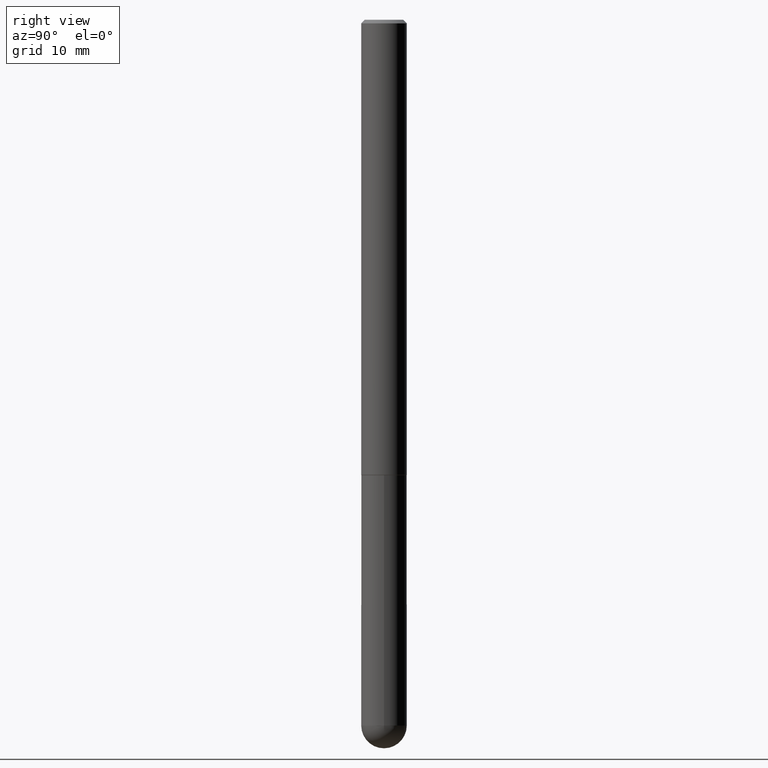
[diagram: clean part render]
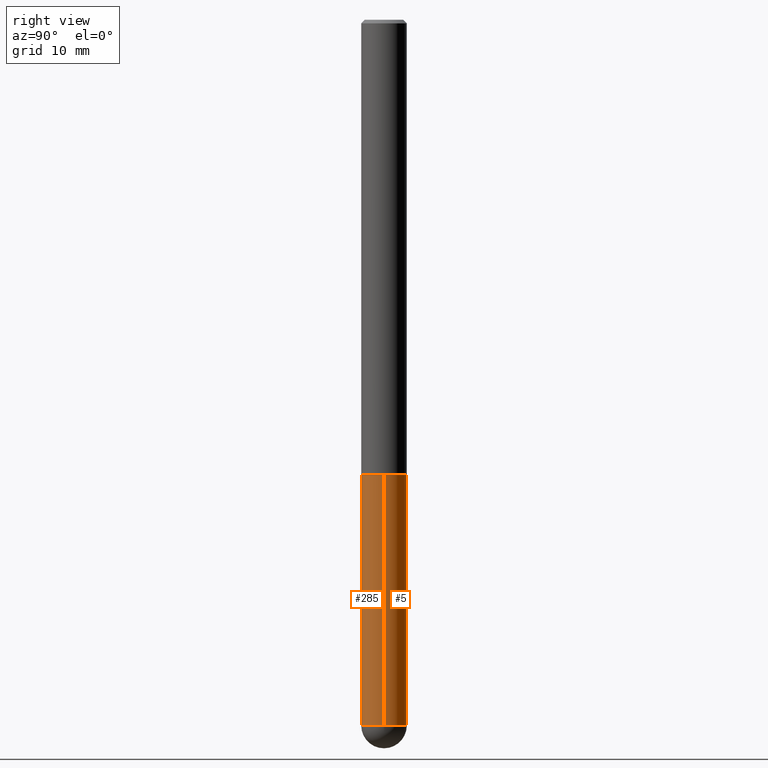
[diagram: same view with one multi-face feature highlighted, each face labeled with its STEP entity id]
A machine part, right view. The highlighted faces form ONE feature: a constant-radius fillet chain: 2 tangent blend faces with common blend radius 3.175 mm. The faces share edges in the B-rep.
Their STEP definitions:
[1] entity #285 (Cylinder):
#17 = LINE ( 'NONE', #332, #131 ) ;
#24 = DIRECTION ( 'NONE',  ( 1.000000000000000000, -6.982962677686262766E-15, 0.000000000000000000 ) ) ;
#26 = ORIENTED_EDGE ( 'NONE', *, *, #145, .F. ) ;
#29 = DIRECTION ( 'NONE',  ( -2.445468806185136877E-29, 3.491481338843145188E-15, 1.000000000000000000 ) ) ;
#43 = CARTESIAN_POINT ( 'NONE',  ( -0.1250000000000000000, -1.024091834786240415E-14, -3.875000000000000000 ) ) ;
#44 = CARTESIAN_POINT ( 'NONE',  ( 0.1250000000000000000, -1.200196710227331272E-14, -3.875000000000000000 ) ) ;
#47 = CIRCLE ( 'NONE', #208, 0.1250000000000000000 ) ;
#50 = EDGE_LOOP ( 'NONE', ( #122, #211, #401, #180, #26 ) ) ;
#51 = DIRECTION ( 'NONE',  ( -2.445468806185136877E-29, 3.491481338843145188E-15, 1.000000000000000000 ) ) ;
#55 = AXIS2_PLACEMENT_3D ( 'NONE', #291, #171, #292 ) ;
#62 = LINE ( 'NONE', #309, #85 ) ;
#69 = CARTESIAN_POINT ( 'NONE',  ( 9.476191623967404313E-29, -1.352949018801718908E-14, -3.875000000000000000 ) ) ;
#80 = CARTESIAN_POINT ( 'NONE',  ( -8.881784197000325412E-16, -0.1250000000000138500, -3.874999999999999556 ) ) ;
#84 = EDGE_CURVE ( 'NONE', #306, #153, #343, .T. ) ;
#85 = VECTOR ( 'NONE', #29, 39.37007874015748143 ) ;
#98 = CARTESIAN_POINT ( 'NONE',  ( 6.113672015462842613E-29, -8.728703347107864943E-15, -2.500000000000000000 ) ) ;
#113 = FACE_OUTER_BOUND ( 'NONE', #50, .T. ) ;
#122 = ORIENTED_EDGE ( 'NONE', *, *, #367, .F. ) ;
#131 = VECTOR ( 'NONE', #51, 39.37007874015748143 ) ;
#145 = EDGE_CURVE ( 'NONE', #304, #307, #355, .T. ) ;
#147 = EDGE_CURVE ( 'NONE', #279, #307, #62, .T. ) ;
#153 = VERTEX_POINT ( 'NONE', #80 ) ;
#161 = AXIS2_PLACEMENT_3D ( 'NONE', #69, #314, #221 ) ;
#165 = CYLINDRICAL_SURFACE ( 'NONE', #55, 0.1250000000000000000 ) ;
#168 = CARTESIAN_POINT ( 'NONE',  ( 0.1250000000000000000, -9.601573681818648281E-15, -2.500000000000000000 ) ) ;
#171 = DIRECTION ( 'NONE',  ( -2.445468806185136597E-29, 3.491481338843145583E-15, 1.000000000000000000 ) ) ;
#180 = ORIENTED_EDGE ( 'NONE', *, *, #147, .T. ) ;
#208 = AXIS2_PLACEMENT_3D ( 'NONE', #338, #268, #24 ) ;
#211 = ORIENTED_EDGE ( 'NONE', *, *, #84, .T. ) ;
#219 = DIRECTION ( 'NONE',  ( -2.445468806185136597E-29, 3.491481338843145583E-15, 1.000000000000000000 ) ) ;
#221 = DIRECTION ( 'NONE',  ( 1.000000000000000000, -6.982962677686262766E-15, 0.000000000000000000 ) ) ;
#268 = DIRECTION ( 'NONE',  ( -2.445468806185136597E-29, 3.491481338843145583E-15, 1.000000000000000000 ) ) ;
#269 = AXIS2_PLACEMENT_3D ( 'NONE', #98, #219, #341 ) ;
#279 = VERTEX_POINT ( 'NONE', #44 ) ;
#285 = ADVANCED_FACE ( 'NONE', ( #113 ), #165, .T. ) ;
#291 = CARTESIAN_POINT ( 'NONE',  ( 0.000000000000000000, 0.000000000000000000, 0.000000000000000000 ) ) ;
#292 = DIRECTION ( 'NONE',  ( 1.000000000000000000, -6.982962677686266711E-15, 4.876176775795935793E-29 ) ) ;
#304 = VERTEX_POINT ( 'NONE', #392 ) ;
#306 = VERTEX_POINT ( 'NONE', #43 ) ;
#307 = VERTEX_POINT ( 'NONE', #168 ) ;
#309 = CARTESIAN_POINT ( 'NONE',  ( 0.1250000000000000000, -8.728703347107833388E-16, 6.095220969744919741E-30 ) ) ;
#314 = DIRECTION ( 'NONE',  ( -2.445468806185136597E-29, 3.491481338843145583E-15, 1.000000000000000000 ) ) ;
#332 = CARTESIAN_POINT ( 'NONE',  ( -0.1250000000000000000, 8.881784197001252323E-16, -6.148668862818632227E-30 ) ) ;
#338 = CARTESIAN_POINT ( 'NONE',  ( 9.476191623967404313E-29, -1.352949018801718908E-14, -3.875000000000000000 ) ) ;
#341 = DIRECTION ( 'NONE',  ( 1.000000000000000000, -6.982962677686270655E-15, 0.000000000000000000 ) ) ;
#343 = CIRCLE ( 'NONE', #161, 0.1250000000000000000 ) ;
#355 = CIRCLE ( 'NONE', #269, 0.1250000000000000000 ) ;
#367 = EDGE_CURVE ( 'NONE', #306, #304, #17, .T. ) ;
#392 = CARTESIAN_POINT ( 'NONE',  ( -0.1250000000000000000, -1.024091834786240099E-14, -2.500000000000000000 ) ) ;
#401 = ORIENTED_EDGE ( 'NONE', *, *, #403, .T. ) ;
#403 = EDGE_CURVE ( 'NONE', #153, #279, #47, .T. ) ;
[2] entity #5 (Cylinder):
#3 = AXIS2_PLACEMENT_3D ( 'NONE', #58, #22, #53 ) ;
#5 = ADVANCED_FACE ( 'NONE', ( #379 ), #342, .T. ) ;
#13 = AXIS2_PLACEMENT_3D ( 'NONE', #129, #134, #312 ) ;
#14 = AXIS2_PLACEMENT_3D ( 'NONE', #206, #261, #138 ) ;
#15 = CARTESIAN_POINT ( 'NONE',  ( 6.113672015462842613E-29, -8.728703347107864943E-15, -2.500000000000000000 ) ) ;
#17 = LINE ( 'NONE', #332, #131 ) ;
#21 = CIRCLE ( 'NONE', #126, 0.1250000000000000000 ) ;
#22 = DIRECTION ( 'NONE',  ( -2.445468806185136597E-29, 3.491481338843145583E-15, 1.000000000000000000 ) ) ;
#27 = CIRCLE ( 'NONE', #3, 0.1250000000000000000 ) ;
#29 = DIRECTION ( 'NONE',  ( -2.445468806185136877E-29, 3.491481338843145188E-15, 1.000000000000000000 ) ) ;
#43 = CARTESIAN_POINT ( 'NONE',  ( -0.1250000000000000000, -1.024091834786240415E-14, -3.875000000000000000 ) ) ;
#44 = CARTESIAN_POINT ( 'NONE',  ( 0.1250000000000000000, -1.200196710227331272E-14, -3.875000000000000000 ) ) ;
#51 = DIRECTION ( 'NONE',  ( -2.445468806185136877E-29, 3.491481338843145188E-15, 1.000000000000000000 ) ) ;
#53 = DIRECTION ( 'NONE',  ( 1.000000000000000000, -6.982962677686262766E-15, 0.000000000000000000 ) ) ;
#58 = CARTESIAN_POINT ( 'NONE',  ( 9.476191623967404313E-29, -1.352949018801718908E-14, -3.875000000000000000 ) ) ;
#62 = LINE ( 'NONE', #309, #85 ) ;
#77 = CARTESIAN_POINT ( 'NONE',  ( 8.728703347108770161E-16, 0.1249999999999863443, -3.875000000000000444 ) ) ;
#85 = VECTOR ( 'NONE', #29, 39.37007874015748143 ) ;
#87 = EDGE_LOOP ( 'NONE', ( #144, #158, #274, #176, #399 ) ) ;
#126 = AXIS2_PLACEMENT_3D ( 'NONE', #15, #327, #142 ) ;
#129 = CARTESIAN_POINT ( 'NONE',  ( 0.000000000000000000, 0.000000000000000000, 0.000000000000000000 ) ) ;
#131 = VECTOR ( 'NONE', #51, 39.37007874015748143 ) ;
#134 = DIRECTION ( 'NONE',  ( -2.445468806185136597E-29, 3.491481338843145583E-15, 1.000000000000000000 ) ) ;
#138 = DIRECTION ( 'NONE',  ( 1.000000000000000000, -6.982962677686262766E-15, 0.000000000000000000 ) ) ;
#142 = DIRECTION ( 'NONE',  ( 1.000000000000000000, -6.982962677686270655E-15, 0.000000000000000000 ) ) ;
#144 = ORIENTED_EDGE ( 'NONE', *, *, #409, .T. ) ;
#147 = EDGE_CURVE ( 'NONE', #279, #307, #62, .T. ) ;
#158 = ORIENTED_EDGE ( 'NONE', *, *, #367, .T. ) ;
#168 = CARTESIAN_POINT ( 'NONE',  ( 0.1250000000000000000, -9.601573681818648281E-15, -2.500000000000000000 ) ) ;
#169 = EDGE_CURVE ( 'NONE', #279, #209, #321, .T. ) ;
#176 = ORIENTED_EDGE ( 'NONE', *, *, #147, .F. ) ;
#206 = CARTESIAN_POINT ( 'NONE',  ( 9.476191623967404313E-29, -1.352949018801718908E-14, -3.875000000000000000 ) ) ;
#209 = VERTEX_POINT ( 'NONE', #77 ) ;
#261 = DIRECTION ( 'NONE',  ( -2.445468806185136597E-29, 3.491481338843145583E-15, 1.000000000000000000 ) ) ;
#274 = ORIENTED_EDGE ( 'NONE', *, *, #275, .F. ) ;
#275 = EDGE_CURVE ( 'NONE', #307, #304, #21, .T. ) ;
#279 = VERTEX_POINT ( 'NONE', #44 ) ;
#304 = VERTEX_POINT ( 'NONE', #392 ) ;
#306 = VERTEX_POINT ( 'NONE', #43 ) ;
#307 = VERTEX_POINT ( 'NONE', #168 ) ;
#309 = CARTESIAN_POINT ( 'NONE',  ( 0.1250000000000000000, -8.728703347107833388E-16, 6.095220969744919741E-30 ) ) ;
#312 = DIRECTION ( 'NONE',  ( 1.000000000000000000, -6.982962677686266711E-15, 4.876176775795935793E-29 ) ) ;
#321 = CIRCLE ( 'NONE', #14, 0.1250000000000000000 ) ;
#327 = DIRECTION ( 'NONE',  ( -2.445468806185136597E-29, 3.491481338843145583E-15, 1.000000000000000000 ) ) ;
#332 = CARTESIAN_POINT ( 'NONE',  ( -0.1250000000000000000, 8.881784197001252323E-16, -6.148668862818632227E-30 ) ) ;
#342 = CYLINDRICAL_SURFACE ( 'NONE', #13, 0.1250000000000000000 ) ;
#367 = EDGE_CURVE ( 'NONE', #306, #304, #17, .T. ) ;
#379 = FACE_OUTER_BOUND ( 'NONE', #87, .T. ) ;
#392 = CARTESIAN_POINT ( 'NONE',  ( -0.1250000000000000000, -1.024091834786240099E-14, -2.500000000000000000 ) ) ;
#399 = ORIENTED_EDGE ( 'NONE', *, *, #169, .T. ) ;
#409 = EDGE_CURVE ( 'NONE', #209, #306, #27, .T. ) ;